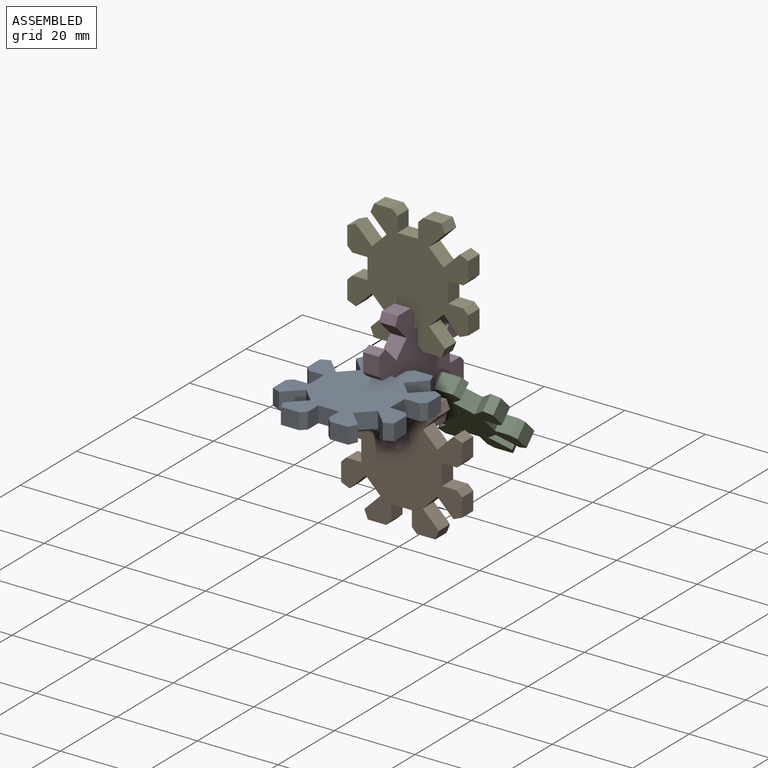
[diagram: assembled view]
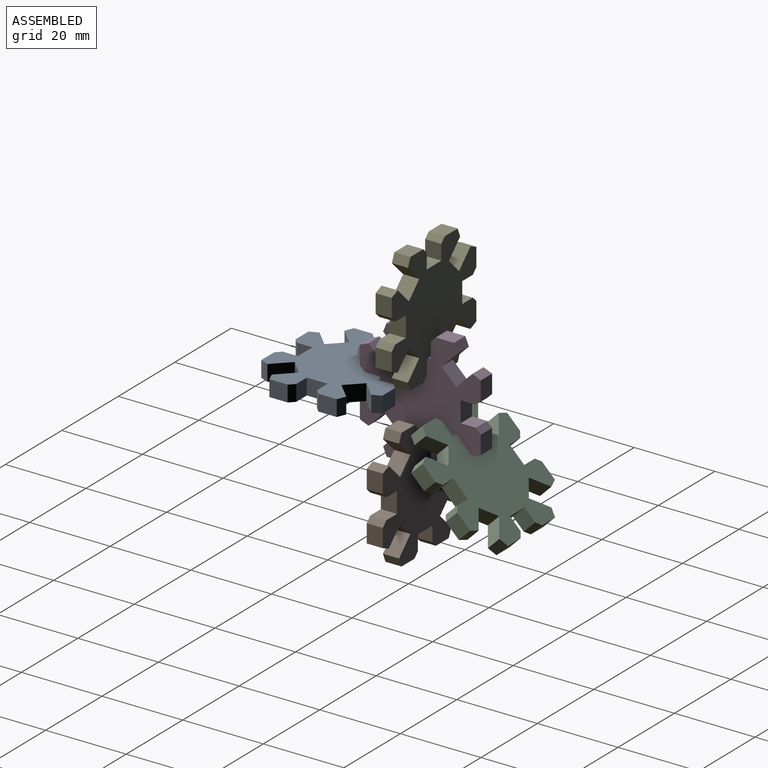
[diagram: assembled view, second angle]
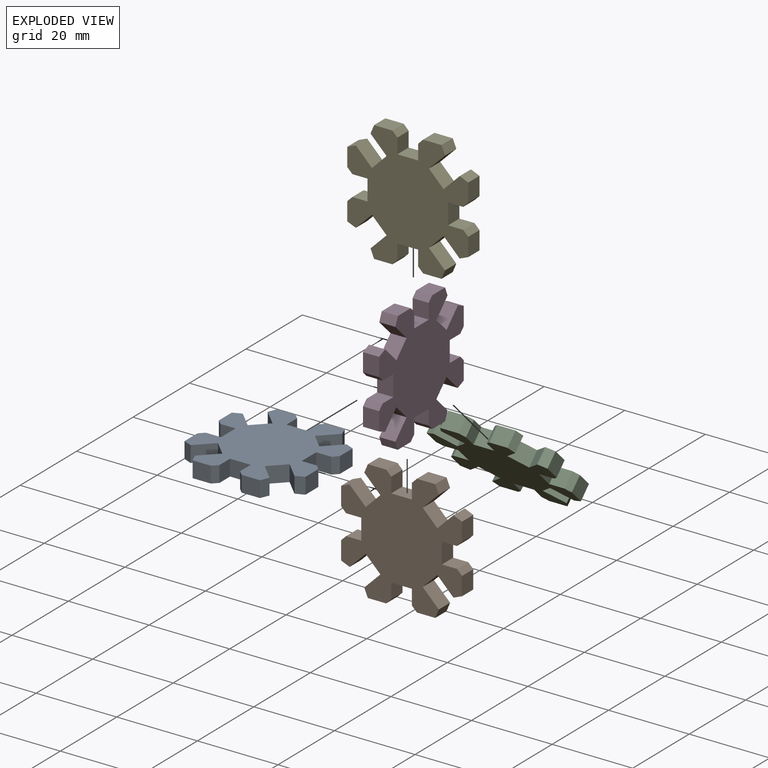
[diagram: exploded view]
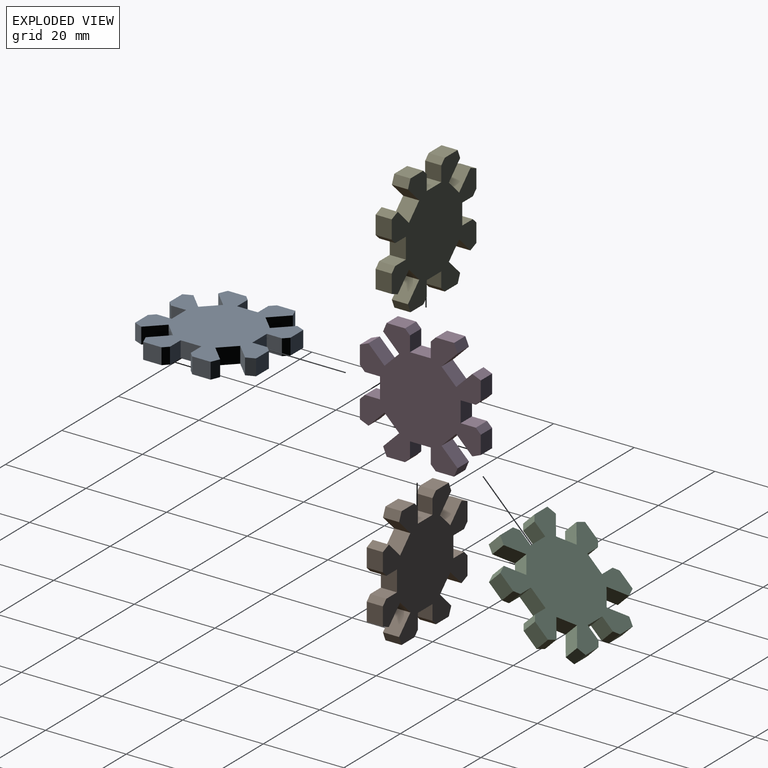
[diagram: exploded view, second angle]
ASSEMBLY  parts=5 mates=4
PART A: 50 faces, bbox 30x30x4 mm
  f0: plane 4.55x4mm, normal (0,-1,0), area 18.2mm2, adj f32,f33,f44,f45
  f1: plane 4x3.99mm, normal (0.71,0.71,0), area 22.6mm2, adj f2,f32,f33,f45
  f2: plane 4x3.64mm, normal (0.71,-0.71,0), area 20.6mm2, adj f1,f3,f32,f33
  f3: plane 4x3.99mm, normal (-0.71,-0.71,0), area 22.6mm2, adj f2,f32,f33,f35
  f4: plane 4.55x4mm, normal (1,0,0), area 18.2mm2, adj f32,f33,f35,f46
  f5: plane 4x3.76mm, normal (0,1,0), area 15mm2, adj f6,f32,f33,f46
  f6: plane 5.14x4mm, normal (1,0,0), area 20.6mm2, adj f5,f7,f32,f33
  f7: plane 4x3.76mm, normal (0,-1,0), area 15mm2, adj f6,f32,f33,f36
  f8: plane 4.55x4mm, normal (1,0,0), area 18.2mm2, adj f32,f33,f36,f49
  f9: plane 4x3.99mm, normal (-0.71,0.71,0), area 22.6mm2, adj f10,f32,f33,f49
  f10: plane 4x3.64mm, normal (0.71,0.71,0), area 20.6mm2, adj f9,f11,f32,f33
  f11: plane 4x3.99mm, normal (0.71,-0.71,0), area 22.6mm2, adj f10,f32,f33,f48
  f12: plane 4.55x4mm, normal (0,1,0), area 18.2mm2, adj f32,f33,f47,f48
  f13: plane 4x3.76mm, normal (-1,0,0), area 15mm2, adj f14,f32,f33,f47
  f14: plane 5.14x4mm, normal (0,1,0), area 20.6mm2, adj f13,f15,f32,f33
  f15: plane 4x3.76mm, normal (1,0,0), area 15mm2, adj f14,f32,f33,f37
  f16: plane 4.55x4mm, normal (0,1,0), area 18.2mm2, adj f32,f33,f37,f38
  f17: plane 4x3.99mm, normal (-0.71,-0.71,0), area 22.6mm2, adj f18,f32,f33,f38
  f18: plane 4x3.64mm, normal (-0.71,0.71,0), area 20.6mm2, adj f17,f19,f32,f33
  f19: plane 4x3.99mm, normal (0.71,0.71,0), area 22.6mm2, adj f18,f32,f33,f39
  f20: plane 4.55x4mm, normal (-1,0,0), area 18.2mm2, adj f32,f33,f39,f40
  f21: plane 4x3.76mm, normal (0,-1,0), area 15mm2, adj f22,f32,f33,f40
  f22: plane 5.14x4mm, normal (-1,0,0), area 20.6mm2, adj f21,f23,f32,f33
  f23: plane 4x3.76mm, normal (0,1,0), area 15mm2, adj f22,f32,f33,f41
  f24: plane 4.55x4mm, normal (-1,0,0), area 18.2mm2, adj f32,f33,f41,f42
  f25: plane 4x3.99mm, normal (0.71,-0.71,0), area 22.6mm2, adj f26,f32,f33,f42
  f26: plane 4x3.64mm, normal (-0.71,-0.71,0), area 20.6mm2, adj f25,f27,f32,f33
  f27: plane 4x3.99mm, normal (-0.71,0.71,0), area 22.6mm2, adj f26,f32,f33,f43
  f28: plane 4.55x4mm, normal (0,-1,0), area 18.2mm2, adj f32,f33,f34,f43
  f29: plane 4x3.76mm, normal (1,0,0), area 15mm2, adj f30,f32,f33,f34
  f30: plane 5.14x4mm, normal (0,-1,0), area 20.6mm2, adj f29,f31,f32,f33
  f31: plane 4x3.76mm, normal (-1,0,0), area 15mm2, adj f30,f32,f33,f44
  f32: plane 30x30mm, normal (0,0,1), area 561.4mm2, adj f0,f1,f2,f3,f4,f5,f6,f7
  f33: plane 30x30mm, normal (0,0,-1), area 561.4mm2, adj f0,f1,f2,f3,f4,f5,f6,f7
  f34: plane 4x1.24mm, normal (0.71,-0.71,0), area 7mm2, adj f28,f29,f32,f33
  f35: plane 4x2.12mm, normal (0.38,-0.92,0), area 9.2mm2, adj f3,f4,f32,f33
  f36: plane 4x1.24mm, normal (0.71,-0.71,0), area 7mm2, adj f7,f8,f32,f33
  f37: plane 4x1.24mm, normal (0.71,0.71,0), area 7mm2, adj f15,f16,f32,f33
  f38: plane 4x2.12mm, normal (-0.92,0.38,0), area 9.2mm2, adj f16,f17,f32,f33
  f39: plane 4x2.12mm, normal (-0.38,0.92,0), area 9.2mm2, adj f19,f20,f32,f33
  f40: plane 4x1.24mm, normal (-0.71,-0.71,0), area 7mm2, adj f20,f21,f32,f33
  f41: plane 4x1.24mm, normal (-0.71,0.71,0), area 7mm2, adj f23,f24,f32,f33
  f42: plane 4x2.12mm, normal (-0.38,-0.92,0), area 9.2mm2, adj f24,f25,f32,f33
  f43: plane 4x2.12mm, normal (-0.92,-0.38,0), area 9.2mm2, adj f27,f28,f32,f33
  f44: plane 4x1.24mm, normal (-0.71,-0.71,0), area 7mm2, adj f0,f31,f32,f33
  f45: plane 4x2.12mm, normal (0.92,-0.38,0), area 9.2mm2, adj f0,f1,f32,f33
  f46: plane 4x1.24mm, normal (0.71,0.71,0), area 7mm2, adj f4,f5,f32,f33
  f47: plane 4x1.24mm, normal (-0.71,0.71,0), area 7mm2, adj f12,f13,f32,f33
  f48: plane 4x2.12mm, normal (0.92,0.38,0), area 9.2mm2, adj f11,f12,f32,f33
  f49: plane 4x2.12mm, normal (0.38,0.92,0), area 9.2mm2, adj f8,f9,f32,f33
PART B: same geometry as A
PART C: same geometry as A
PART D: same geometry as A
PART E: same geometry as A
PLACE A t=(-20.85,-2.23,9.41)mm
PLACE B rot(axis=(1,0,0),90deg) t=(-20.85,17.57,-8.59)mm
PLACE C rot(axis=(-1,0,0),45deg) t=(-20.85,30.5,-4.15)mm
PLACE D rot(axis=(0.58,-0.58,-0.58),120deg) t=(-18.85,17.77,11.41)mm
PLACE E rot(axis=(-1,0,0),90deg) t=(-20.85,15.77,31.41)mm
MATE planar B.f14 <-> D.f30  axis (0,0,1) through (-20.85,15.57,1.41)mm
MATE planar D.f6 <-> A.f14  axis (0,-1,0) through (-20.85,7.77,11.41)mm
MATE planar E.f14 <-> D.f14  axis (0,0,-1) through (-20.85,17.77,21.41)mm
MATE planar C.f30 <-> D.f26  axis (0,-0.71,0.71) through (-20.85,24.84,4.34)mm
